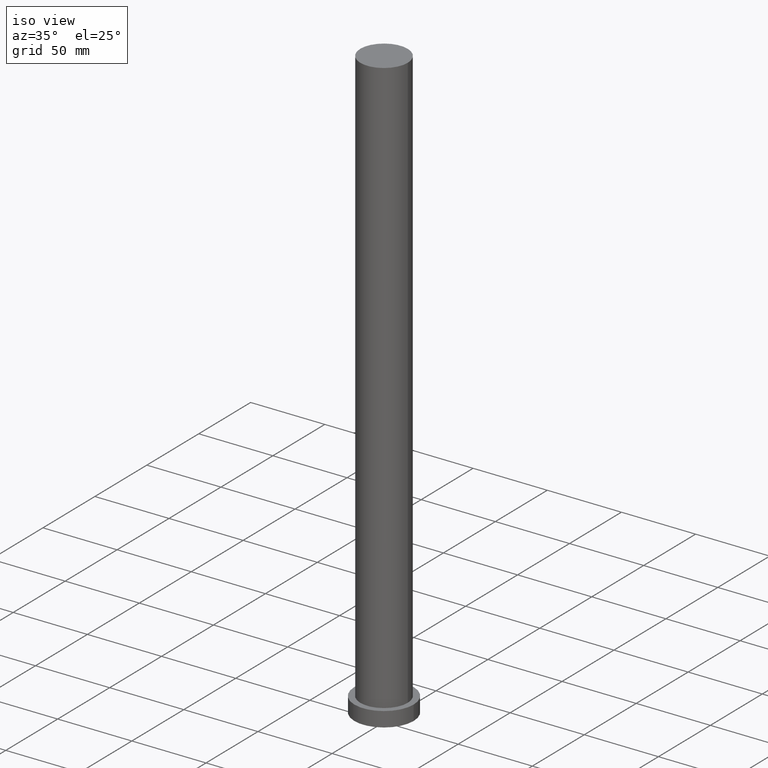
[diagram: clean part render]
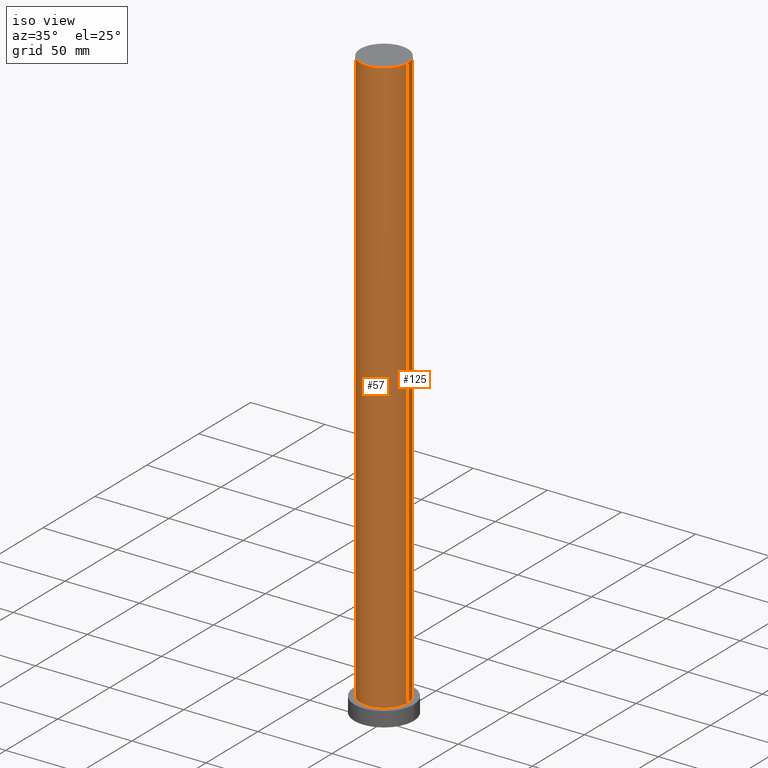
[diagram: same view with one multi-face feature highlighted, each face labeled with its STEP entity id]
A machine part, iso view. The highlighted faces form ONE feature: a constant-radius fillet chain: 2 tangent blend faces with common blend radius 16 mm. The faces share edges in the B-rep.
Their STEP definitions:
[1] entity #125 (Cylinder):
#10 = VERTEX_POINT ( 'NONE', #237 ) ;
#13 = CYLINDRICAL_SURFACE ( 'NONE', #153, 16.00000000000000000 ) ;
#14 = EDGE_CURVE ( 'NONE', #172, #137, #65, .T. ) ;
#19 = CARTESIAN_POINT ( 'NONE',  ( 0.000000000000000000, 0.000000000000000000, 400.0000000000000000 ) ) ;
#24 = VERTEX_POINT ( 'NONE', #253 ) ;
#43 = AXIS2_PLACEMENT_3D ( 'NONE', #19, #110, #87 ) ;
#45 = CARTESIAN_POINT ( 'NONE',  ( -16.00000000000000000, 0.000000000000000000, 10.00000000000000000 ) ) ;
#65 = CIRCLE ( 'NONE', #98, 16.00000000000000000 ) ;
#66 = DIRECTION ( 'NONE',  ( -0.000000000000000000, -0.000000000000000000, -1.000000000000000000 ) ) ;
#72 = EDGE_LOOP ( 'NONE', ( #113, #131, #109, #211 ) ) ;
#81 = VECTOR ( 'NONE', #66, 1000.000000000000000 ) ;
#87 = DIRECTION ( 'NONE',  ( 1.000000000000000000, 0.000000000000000000, 0.000000000000000000 ) ) ;
#98 = AXIS2_PLACEMENT_3D ( 'NONE', #232, #178, #117 ) ;
#99 = FACE_OUTER_BOUND ( 'NONE', #72, .T. ) ;
#107 = DIRECTION ( 'NONE',  ( -0.000000000000000000, -0.000000000000000000, -1.000000000000000000 ) ) ;
#109 = ORIENTED_EDGE ( 'NONE', *, *, #14, .T. ) ;
#110 = DIRECTION ( 'NONE',  ( 0.000000000000000000, 0.000000000000000000, 1.000000000000000000 ) ) ;
#113 = ORIENTED_EDGE ( 'NONE', *, *, #135, .F. ) ;
#117 = DIRECTION ( 'NONE',  ( 1.000000000000000000, 0.000000000000000000, 0.000000000000000000 ) ) ;
#122 = DIRECTION ( 'NONE',  ( -1.000000000000000000, 0.000000000000000000, 0.000000000000000000 ) ) ;
#125 = ADVANCED_FACE ( 'NONE', ( #99 ), #13, .T. ) ;
#130 = CIRCLE ( 'NONE', #43, 16.00000000000000000 ) ;
#131 = ORIENTED_EDGE ( 'NONE', *, *, #196, .T. ) ;
#134 = CARTESIAN_POINT ( 'NONE',  ( -16.00000000000000000, 0.000000000000000000, 400.0000000000000000 ) ) ;
#135 = EDGE_CURVE ( 'NONE', #24, #10, #130, .T. ) ;
#137 = VERTEX_POINT ( 'NONE', #45 ) ;
#153 = AXIS2_PLACEMENT_3D ( 'NONE', #199, #179, #122 ) ;
#156 = CARTESIAN_POINT ( 'NONE',  ( 16.00000000000000000, 1.959434878635765131E-15, 400.0000000000000000 ) ) ;
#172 = VERTEX_POINT ( 'NONE', #227 ) ;
#178 = DIRECTION ( 'NONE',  ( 0.000000000000000000, 0.000000000000000000, 1.000000000000000000 ) ) ;
#179 = DIRECTION ( 'NONE',  ( -0.000000000000000000, -0.000000000000000000, -1.000000000000000000 ) ) ;
#183 = LINE ( 'NONE', #156, #192 ) ;
#192 = VECTOR ( 'NONE', #107, 1000.000000000000000 ) ;
#196 = EDGE_CURVE ( 'NONE', #24, #172, #183, .T. ) ;
#199 = CARTESIAN_POINT ( 'NONE',  ( 0.000000000000000000, 0.000000000000000000, 400.0000000000000000 ) ) ;
#211 = ORIENTED_EDGE ( 'NONE', *, *, #224, .F. ) ;
#224 = EDGE_CURVE ( 'NONE', #10, #137, #229, .T. ) ;
#227 = CARTESIAN_POINT ( 'NONE',  ( 16.00000000000000000, 1.959434878635765131E-15, 10.00000000000000000 ) ) ;
#229 = LINE ( 'NONE', #134, #81 ) ;
#232 = CARTESIAN_POINT ( 'NONE',  ( 0.000000000000000000, 0.000000000000000000, 10.00000000000000000 ) ) ;
#237 = CARTESIAN_POINT ( 'NONE',  ( -16.00000000000000000, 0.000000000000000000, 400.0000000000000000 ) ) ;
#253 = CARTESIAN_POINT ( 'NONE',  ( 16.00000000000000000, 1.959434878635765131E-15, 400.0000000000000000 ) ) ;
[2] entity #57 (Cylinder):
#6 = CARTESIAN_POINT ( 'NONE',  ( 0.000000000000000000, 0.000000000000000000, 10.00000000000000000 ) ) ;
#10 = VERTEX_POINT ( 'NONE', #237 ) ;
#11 = EDGE_LOOP ( 'NONE', ( #90, #30, #187, #191 ) ) ;
#24 = VERTEX_POINT ( 'NONE', #253 ) ;
#30 = ORIENTED_EDGE ( 'NONE', *, *, #49, .F. ) ;
#34 = DIRECTION ( 'NONE',  ( 0.000000000000000000, 0.000000000000000000, 1.000000000000000000 ) ) ;
#45 = CARTESIAN_POINT ( 'NONE',  ( -16.00000000000000000, 0.000000000000000000, 10.00000000000000000 ) ) ;
#49 = EDGE_CURVE ( 'NONE', #10, #24, #238, .T. ) ;
#55 = EDGE_CURVE ( 'NONE', #137, #172, #249, .T. ) ;
#57 = ADVANCED_FACE ( 'NONE', ( #141 ), #176, .T. ) ;
#59 = CARTESIAN_POINT ( 'NONE',  ( 0.000000000000000000, 0.000000000000000000, 400.0000000000000000 ) ) ;
#60 = CARTESIAN_POINT ( 'NONE',  ( 0.000000000000000000, 0.000000000000000000, 400.0000000000000000 ) ) ;
#61 = AXIS2_PLACEMENT_3D ( 'NONE', #60, #79, #221 ) ;
#66 = DIRECTION ( 'NONE',  ( -0.000000000000000000, -0.000000000000000000, -1.000000000000000000 ) ) ;
#73 = AXIS2_PLACEMENT_3D ( 'NONE', #59, #202, #234 ) ;
#79 = DIRECTION ( 'NONE',  ( -0.000000000000000000, -0.000000000000000000, -1.000000000000000000 ) ) ;
#81 = VECTOR ( 'NONE', #66, 1000.000000000000000 ) ;
#90 = ORIENTED_EDGE ( 'NONE', *, *, #196, .F. ) ;
#107 = DIRECTION ( 'NONE',  ( -0.000000000000000000, -0.000000000000000000, -1.000000000000000000 ) ) ;
#134 = CARTESIAN_POINT ( 'NONE',  ( -16.00000000000000000, 0.000000000000000000, 400.0000000000000000 ) ) ;
#137 = VERTEX_POINT ( 'NONE', #45 ) ;
#141 = FACE_OUTER_BOUND ( 'NONE', #11, .T. ) ;
#148 = AXIS2_PLACEMENT_3D ( 'NONE', #6, #34, #218 ) ;
#156 = CARTESIAN_POINT ( 'NONE',  ( 16.00000000000000000, 1.959434878635765131E-15, 400.0000000000000000 ) ) ;
#172 = VERTEX_POINT ( 'NONE', #227 ) ;
#176 = CYLINDRICAL_SURFACE ( 'NONE', #61, 16.00000000000000000 ) ;
#183 = LINE ( 'NONE', #156, #192 ) ;
#187 = ORIENTED_EDGE ( 'NONE', *, *, #224, .T. ) ;
#191 = ORIENTED_EDGE ( 'NONE', *, *, #55, .T. ) ;
#192 = VECTOR ( 'NONE', #107, 1000.000000000000000 ) ;
#196 = EDGE_CURVE ( 'NONE', #24, #172, #183, .T. ) ;
#202 = DIRECTION ( 'NONE',  ( 0.000000000000000000, 0.000000000000000000, 1.000000000000000000 ) ) ;
#218 = DIRECTION ( 'NONE',  ( 1.000000000000000000, 0.000000000000000000, 0.000000000000000000 ) ) ;
#221 = DIRECTION ( 'NONE',  ( -1.000000000000000000, 0.000000000000000000, 0.000000000000000000 ) ) ;
#224 = EDGE_CURVE ( 'NONE', #10, #137, #229, .T. ) ;
#227 = CARTESIAN_POINT ( 'NONE',  ( 16.00000000000000000, 1.959434878635765131E-15, 10.00000000000000000 ) ) ;
#229 = LINE ( 'NONE', #134, #81 ) ;
#234 = DIRECTION ( 'NONE',  ( 1.000000000000000000, 0.000000000000000000, 0.000000000000000000 ) ) ;
#237 = CARTESIAN_POINT ( 'NONE',  ( -16.00000000000000000, 0.000000000000000000, 400.0000000000000000 ) ) ;
#238 = CIRCLE ( 'NONE', #73, 16.00000000000000000 ) ;
#249 = CIRCLE ( 'NONE', #148, 16.00000000000000000 ) ;
#253 = CARTESIAN_POINT ( 'NONE',  ( 16.00000000000000000, 1.959434878635765131E-15, 400.0000000000000000 ) ) ;